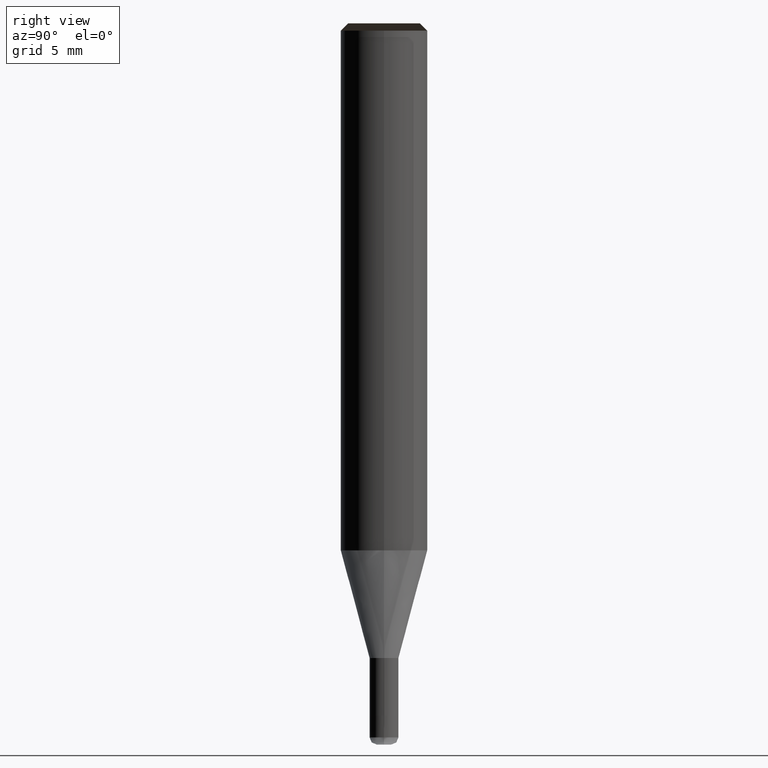
[diagram: clean part render]
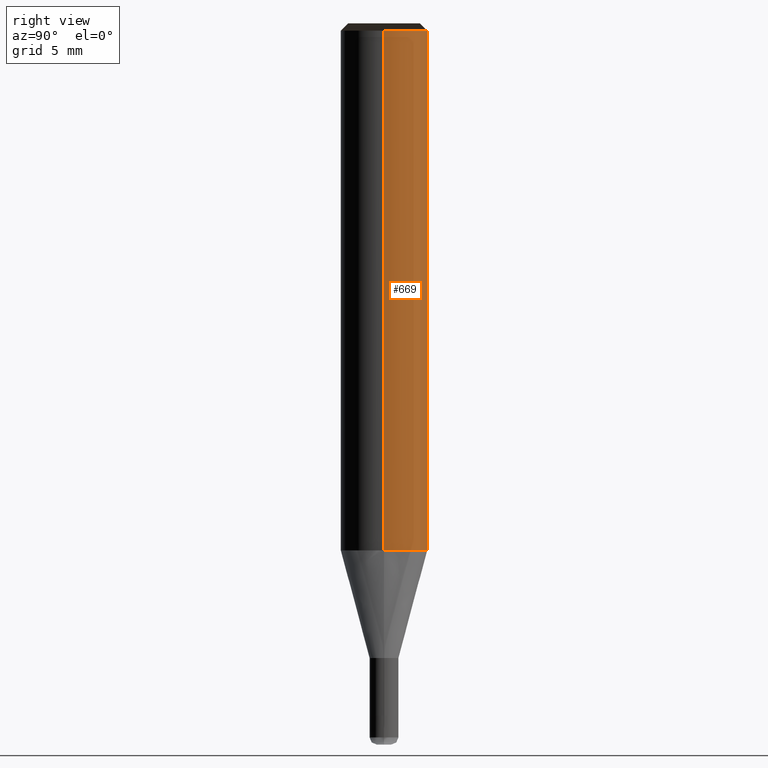
[diagram: same view with one face highlighted and labeled with its STEP entity id]
A machine part, right view. The second image highlights one B-rep face of the part: STEP entity #669.
In plain terms, the highlighted face is a freeform B-spline surface patch.
Its self-contained STEP definition (entity closure, byte-faithful):
#411=CARTESIAN_POINT('',(3.0,0.0,0.0));
#412=CARTESIAN_POINT('',(3.0,3.0,0.0));
#413=CARTESIAN_POINT('',(0.0,3.0,0.0));
#414=CARTESIAN_POINT('',(-3.0,3.0,0.0));
#415=CARTESIAN_POINT('',(-3.0,0.0,0.0));
#416=CARTESIAN_POINT('',(3.0,0.0,36.035898384862));
#417=CARTESIAN_POINT('',(3.0,3.0,36.035898384862));
#418=CARTESIAN_POINT('',(0.0,3.0,36.035898384862));
#419=CARTESIAN_POINT('',(-3.0,3.0,36.035898384862));
#420=CARTESIAN_POINT('',(-3.0,0.0,36.035898384862));
#650=(
BOUNDED_SURFACE()
B_SPLINE_SURFACE(1,2,(
(#411,#412,#413,#414,#415),
(#416,#417,#418,#419,#420)
), .UNSPECIFIED.,.F.,.F.,.F.)
B_SPLINE_SURFACE_WITH_KNOTS((2,2),(3,2,3),(
0.0,1.0),(
0.0,0.5,1.0), .UNSPECIFIED.)
GEOMETRIC_REPRESENTATION_ITEM()
RATIONAL_B_SPLINE_SURFACE(((1.0,0.707106781187,1.0,0.707106781187,1.0),
(1.0,0.707106781187,1.0,0.707106781187,1.0)
))
REPRESENTATION_ITEM('')
SURFACE()
);
#651=(
BOUNDED_CURVE()
B_SPLINE_CURVE(2,(#416,#417,#418,#419,#420),.UNSPECIFIED.,.F.,.F.)
B_SPLINE_CURVE_WITH_KNOTS((3,2,3),
(0.0,0.5,1.0),.UNSPECIFIED.)
CURVE()
GEOMETRIC_REPRESENTATION_ITEM()
RATIONAL_B_SPLINE_CURVE((1.0,0.707106781187,1.0,0.707106781187,1.0))
REPRESENTATION_ITEM('')
);
#652=(
BOUNDED_CURVE()
B_SPLINE_CURVE(1,(#420,#415),.UNSPECIFIED.,.F.,.F.)
B_SPLINE_CURVE_WITH_KNOTS((2,2),
(0.0,1.0),.UNSPECIFIED.)
CURVE()
GEOMETRIC_REPRESENTATION_ITEM()
RATIONAL_B_SPLINE_CURVE((1.0,1.0))
REPRESENTATION_ITEM('')
);
#653=(
BOUNDED_CURVE()
B_SPLINE_CURVE(2,(#415,#414,#413,#412,#411),.UNSPECIFIED.,.F.,.F.)
B_SPLINE_CURVE_WITH_KNOTS((3,2,3),
(0.0,0.5,1.0),.UNSPECIFIED.)
CURVE()
GEOMETRIC_REPRESENTATION_ITEM()
RATIONAL_B_SPLINE_CURVE((1.0,0.707106781187,1.0,0.707106781187,1.0))
REPRESENTATION_ITEM('')
);
#654=(
BOUNDED_CURVE()
B_SPLINE_CURVE(1,(#411,#416),.UNSPECIFIED.,.F.,.F.)
B_SPLINE_CURVE_WITH_KNOTS((2,2),
(0.0,1.0),.UNSPECIFIED.)
CURVE()
GEOMETRIC_REPRESENTATION_ITEM()
RATIONAL_B_SPLINE_CURVE((1.0,1.0))
REPRESENTATION_ITEM('')
);
#655=VERTEX_POINT('',#411);
#656=VERTEX_POINT('',#415);
#657=VERTEX_POINT('',#416);
#658=VERTEX_POINT('',#420);
#659=EDGE_CURVE('',#657,#658,#651,.T.);
#660=EDGE_CURVE('',#658,#656,#652,.T.);
#661=EDGE_CURVE('',#656,#655,#653,.T.);
#662=EDGE_CURVE('',#655,#657,#654,.T.);
#663=ORIENTED_EDGE('',*,*,#659,.T.);
#664=ORIENTED_EDGE('',*,*,#660,.T.);
#665=ORIENTED_EDGE('',*,*,#661,.T.);
#666=ORIENTED_EDGE('',*,*,#662,.T.);
#667=EDGE_LOOP('',(#663,#664,#665,#666));
#668=FACE_OUTER_BOUND('',#667,.T.);
#669=ADVANCED_FACE('',(#668),#650,.T.);